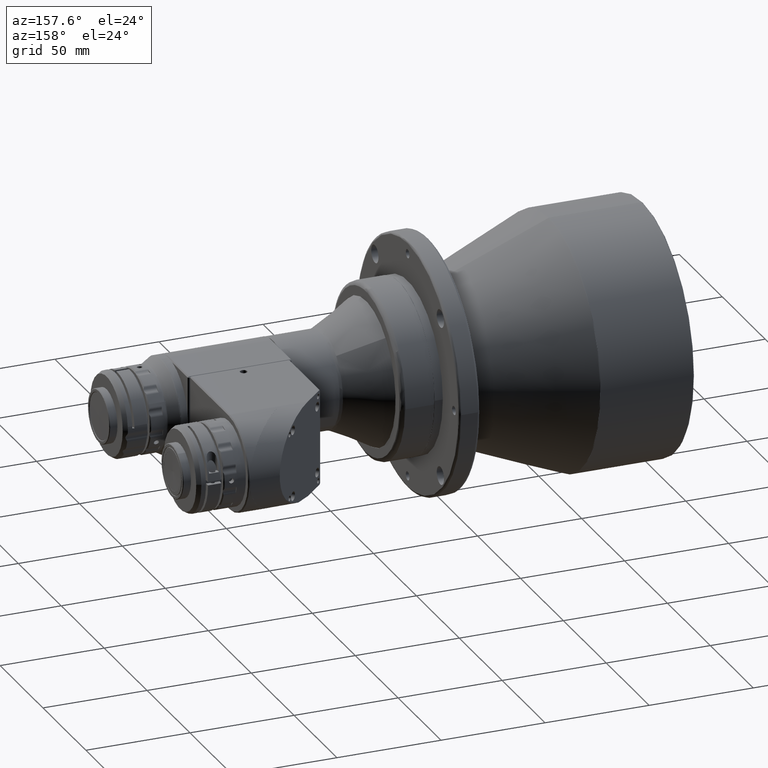
[diagram: clean part render]
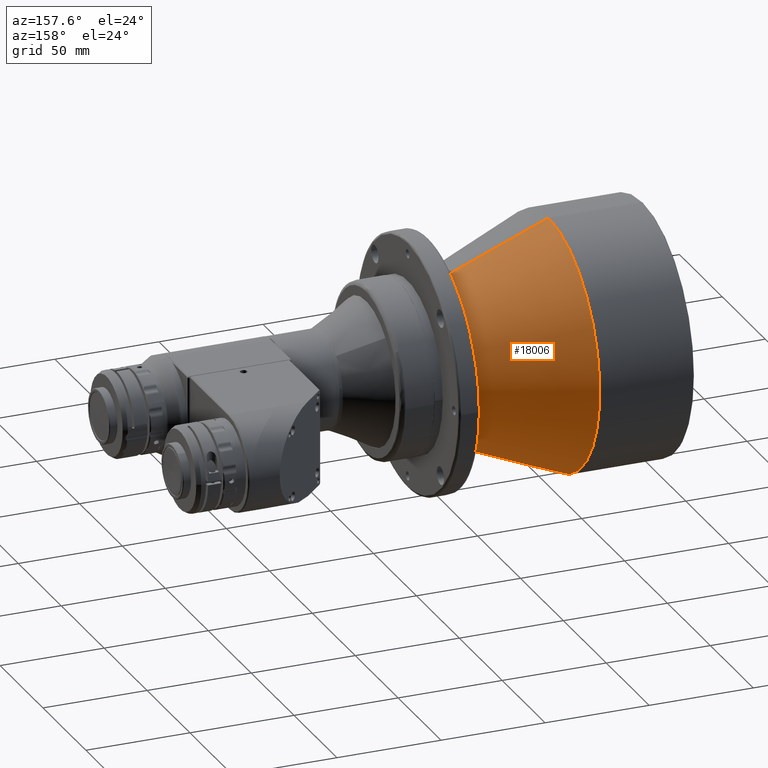
[diagram: same view with one face highlighted and labeled with its STEP entity id]
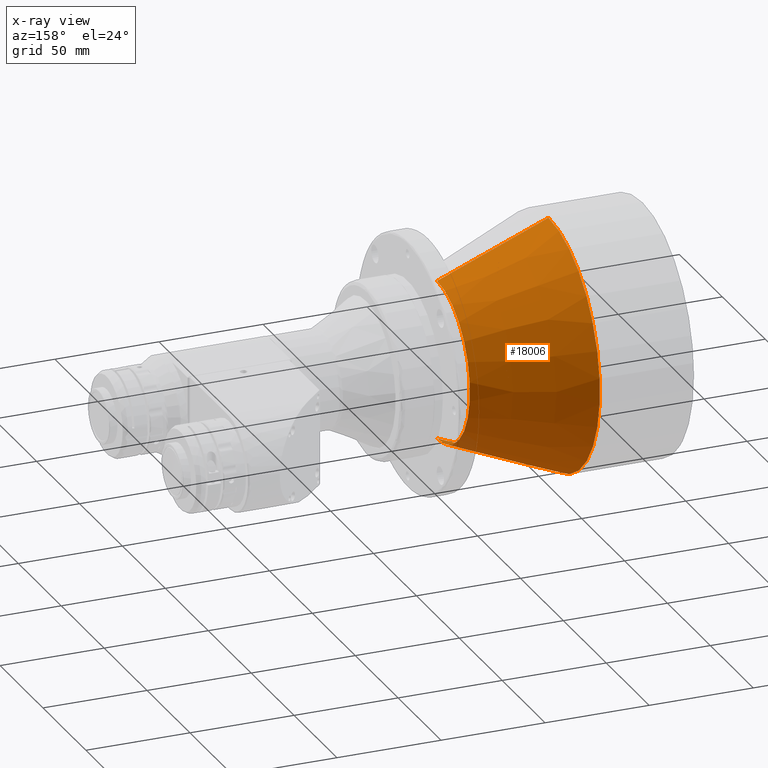
[diagram: x-ray of the same camera — body ghosted, the highlighted face saturated]
A machine part, auxiliary view. The second image highlights one B-rep face of the part: STEP entity #18006.
The next image is the same camera in x-ray: the body ghosted, the highlighted face saturated — about 1% of this face is hidden behind the body in this view.
In plain terms, the highlighted conical surface has half-angle 22 deg.
Its self-contained STEP definition (entity closure, byte-faithful):
#632 = ORIENTED_EDGE ( 'NONE', *, *, #18629, .F. ) ;
#1323 = DIRECTION ( 'NONE',  ( 0.0000000000000000000, 0.0000000000000000000, 1.000000000000000000 ) ) ;
#1837 = CIRCLE ( 'NONE', #17428, 59.92718385499998800 ) ;
#3157 = CARTESIAN_POINT ( 'NONE',  ( 45.37460659354695700, -6.145635434964545300E-009, -59.92718385452169400 ) ) ;
#3377 = DIRECTION ( 'NONE',  ( -0.9271838545653341400, 0.0000000000000000000, 0.3746065934195087500 ) ) ;
#3395 = VERTEX_POINT ( 'NONE', #7935 ) ;
#4501 = VERTEX_POINT ( 'NONE', #15188 ) ;
#4772 = DIRECTION ( 'NONE',  ( 0.0000000000000000000, 0.0000000000000000000, 1.000000000000000000 ) ) ;
#4905 = CARTESIAN_POINT ( 'NONE',  ( 98.87618021880705000, 0.0000000000000000000, 0.0000000000000000000 ) ) ;
#5184 = VECTOR ( 'NONE', #3377, 1000.000000000000100 ) ;
#5293 = AXIS2_PLACEMENT_3D ( 'NONE', #4905, #13780, #4772 ) ;
#6342 = CARTESIAN_POINT ( 'NONE',  ( 98.87618021999999500, 0.0000000000000000000, 38.31114498599999500 ) ) ;
#7549 = ORIENTED_EDGE ( 'NONE', *, *, #8287, .F. ) ;
#7935 = CARTESIAN_POINT ( 'NONE',  ( 45.37460659345580900, -2.690539639928117700E-009, 59.92718385460141000 ) ) ;
#8287 = EDGE_CURVE ( 'NONE', #18474, #3395, #16519, .T. ) ;
#9572 = VECTOR ( 'NONE', #11715, 1000.000000000000100 ) ;
#9927 = DIRECTION ( 'NONE',  ( -1.505253792153086800E-015, 0.0000000000000000000, 1.000000000000000000 ) ) ;
#10475 = AXIS2_PLACEMENT_3D ( 'NONE', #17725, #14758, #1323 ) ;
#10616 = ORIENTED_EDGE ( 'NONE', *, *, #11667, .T. ) ;
#11667 = EDGE_CURVE ( 'NONE', #4501, #18255, #17609, .T. ) ;
#11715 = DIRECTION ( 'NONE',  ( -0.9271838545653341400, 4.587607655706953400E-017, -0.3746065934195087500 ) ) ;
#11784 = CARTESIAN_POINT ( 'NONE',  ( 98.87618021999999500, 4.691762107877505800E-015, -38.31114498599999500 ) ) ;
#12375 = CIRCLE ( 'NONE', #5293, 38.31114498605863600 ) ;
#12757 = DIRECTION ( 'NONE',  ( -1.000000000000000000, 0.0000000000000000000, 0.0000000000000000000 ) ) ;
#13620 = FACE_OUTER_BOUND ( 'NONE', #18120, .T. ) ;
#13780 = DIRECTION ( 'NONE',  ( -1.000000000000000000, 0.0000000000000000000, 0.0000000000000000000 ) ) ;
#14253 = CARTESIAN_POINT ( 'NONE',  ( 98.87618021880705000, 0.0000000000000000000, 38.31114498605863600 ) ) ;
#14758 = DIRECTION ( 'NONE',  ( -1.000000000000000000, 0.0000000000000000000, 0.0000000000000000000 ) ) ;
#15188 = CARTESIAN_POINT ( 'NONE',  ( 98.87618021880705000, 6.015362748420789100E-015, -38.31114498605863600 ) ) ;
#16228 = CONICAL_SURFACE ( 'NONE', #10475, 38.31114498599999500, 0.3839724354426316500 ) ;
#16519 = LINE ( 'NONE', #6342, #5184 ) ;
#16520 = ORIENTED_EDGE ( 'NONE', *, *, #19284, .T. ) ;
#17333 = CARTESIAN_POINT ( 'NONE',  ( 45.37460659300008100, 0.0000000000000000000, 0.0000000000000000000 ) ) ;
#17428 = AXIS2_PLACEMENT_3D ( 'NONE', #17333, #12757, #9927 ) ;
#17609 = LINE ( 'NONE', #11784, #9572 ) ;
#17725 = CARTESIAN_POINT ( 'NONE',  ( 98.87618021999999500, 0.0000000000000000000, 0.0000000000000000000 ) ) ;
#18006 = ADVANCED_FACE ( 'NONE', ( #13620 ), #16228, .T. ) ;
#18120 = EDGE_LOOP ( 'NONE', ( #16520, #10616, #632, #7549 ) ) ;
#18255 = VERTEX_POINT ( 'NONE', #3157 ) ;
#18474 = VERTEX_POINT ( 'NONE', #14253 ) ;
#18629 = EDGE_CURVE ( 'NONE', #3395, #18255, #1837, .T. ) ;
#19284 = EDGE_CURVE ( 'NONE', #18474, #4501, #12375, .T. ) ;